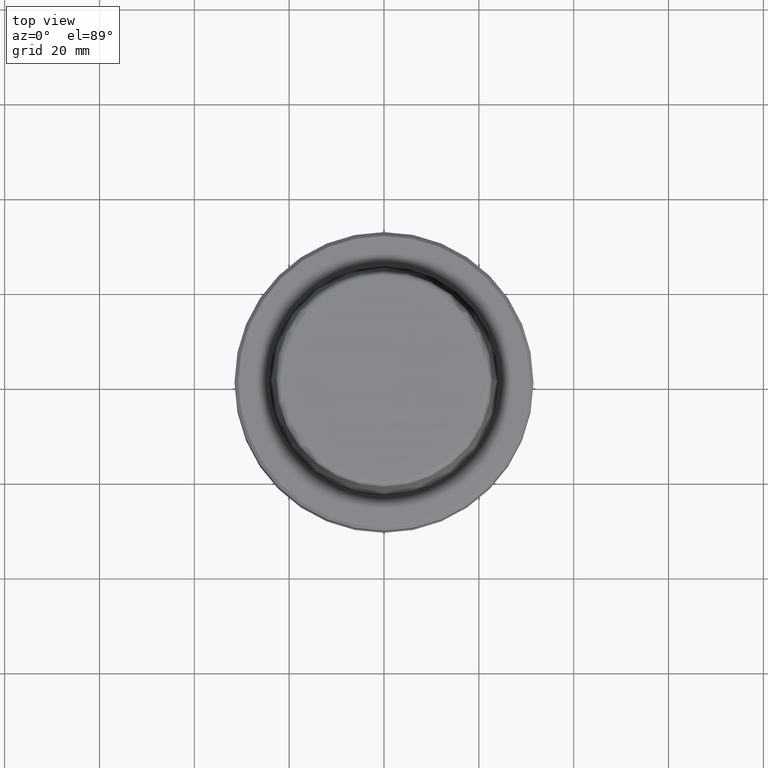
[diagram: clean part render]
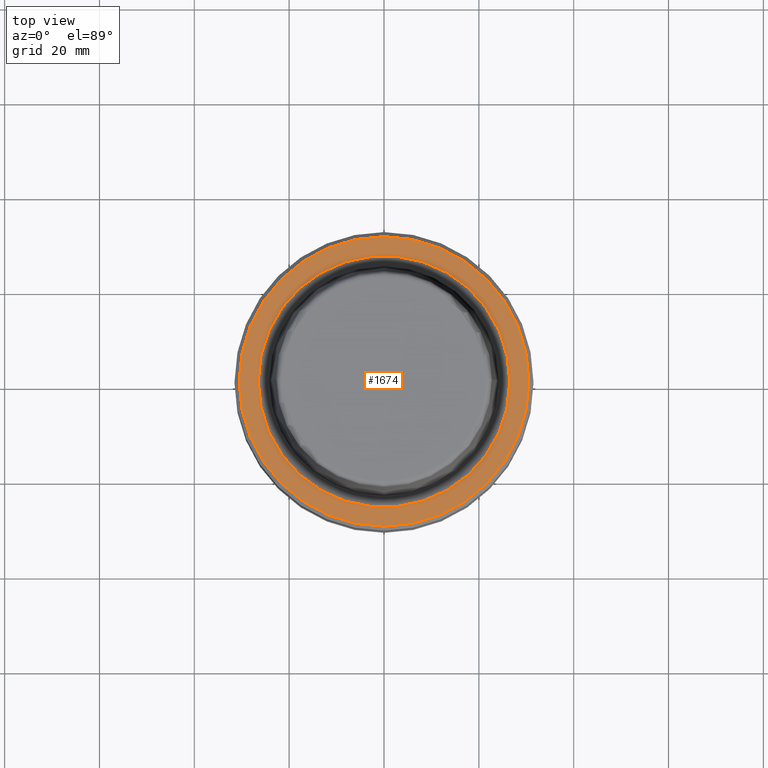
[diagram: same view with one face highlighted and labeled with its STEP entity id]
A machine part, top view. The second image highlights one B-rep face of the part: STEP entity #1674.
In plain terms, the highlighted planar face has unit normal (0, 0, -1).
Its self-contained STEP definition (entity closure, byte-faithful):
#116 = PLANE ( 'NONE',  #1242 ) ;
#160 = EDGE_CURVE ( 'NONE', #1040, #1711, #1198, .T. ) ;
#194 = AXIS2_PLACEMENT_3D ( 'NONE', #1407, #938, #1718 ) ;
#199 = EDGE_CURVE ( 'NONE', #1711, #1040, #1520, .T. ) ;
#297 = CARTESIAN_POINT ( 'NONE',  ( -26.52499999999999900, 3.248375634738354300E-015, 0.0000000000000000000 ) ) ;
#324 = CARTESIAN_POINT ( 'NONE',  ( -30.53431457505076100, 3.756694181974138600E-015, 0.0000000000000000000 ) ) ;
#336 = VERTEX_POINT ( 'NONE', #571 ) ;
#441 = ORIENTED_EDGE ( 'NONE', *, *, #1683, .T. ) ;
#449 = DIRECTION ( 'NONE',  ( -0.0000000000000000000, -0.0000000000000000000, 1.000000000000000000 ) ) ;
#458 = DIRECTION ( 'NONE',  ( 1.000000000000000000, 0.0000000000000000000, 0.0000000000000000000 ) ) ;
#569 = EDGE_LOOP ( 'NONE', ( #1967, #615 ) ) ;
#571 = CARTESIAN_POINT ( 'NONE',  ( 30.53431457505076100, 0.0000000000000000000, 0.0000000000000000000 ) ) ;
#600 = CARTESIAN_POINT ( 'NONE',  ( 0.0000000000000000000, 0.0000000000000000000, 0.0000000000000000000 ) ) ;
#615 = ORIENTED_EDGE ( 'NONE', *, *, #199, .F. ) ;
#644 = VERTEX_POINT ( 'NONE', #324 ) ;
#728 = AXIS2_PLACEMENT_3D ( 'NONE', #600, #1701, #771 ) ;
#733 = FACE_BOUND ( 'NONE', #569, .T. ) ;
#771 = DIRECTION ( 'NONE',  ( 1.000000000000000000, 0.0000000000000000000, 0.0000000000000000000 ) ) ;
#785 = CIRCLE ( 'NONE', #728, 30.53431457505076100 ) ;
#848 = AXIS2_PLACEMENT_3D ( 'NONE', #1545, #449, #458 ) ;
#922 = DIRECTION ( 'NONE',  ( -1.000000000000000000, 0.0000000000000000000, -0.0000000000000000000 ) ) ;
#928 = DIRECTION ( 'NONE',  ( -0.0000000000000000000, -0.0000000000000000000, 1.000000000000000000 ) ) ;
#938 = DIRECTION ( 'NONE',  ( -0.0000000000000000000, -0.0000000000000000000, 1.000000000000000000 ) ) ;
#1040 = VERTEX_POINT ( 'NONE', #1585 ) ;
#1198 = CIRCLE ( 'NONE', #194, 26.52499999999999900 ) ;
#1226 = ORIENTED_EDGE ( 'NONE', *, *, #1671, .T. ) ;
#1242 = AXIS2_PLACEMENT_3D ( 'NONE', #1542, #1853, #922 ) ;
#1348 = AXIS2_PLACEMENT_3D ( 'NONE', #1857, #928, #2011 ) ;
#1404 = EDGE_LOOP ( 'NONE', ( #1226, #441 ) ) ;
#1407 = CARTESIAN_POINT ( 'NONE',  ( 0.0000000000000000000, 0.0000000000000000000, 0.0000000000000000000 ) ) ;
#1508 = CIRCLE ( 'NONE', #1348, 30.53431457505076100 ) ;
#1520 = CIRCLE ( 'NONE', #848, 26.52499999999999900 ) ;
#1542 = CARTESIAN_POINT ( 'NONE',  ( 0.0000000000000000000, 26.52499999999999900, -1.111307226797642000E-015 ) ) ;
#1545 = CARTESIAN_POINT ( 'NONE',  ( 0.0000000000000000000, 0.0000000000000000000, 0.0000000000000000000 ) ) ;
#1585 = CARTESIAN_POINT ( 'NONE',  ( 26.52499999999999900, 0.0000000000000000000, 0.0000000000000000000 ) ) ;
#1671 = EDGE_CURVE ( 'NONE', #336, #644, #785, .T. ) ;
#1674 = ADVANCED_FACE ( 'NONE', ( #733, #2017 ), #116, .F. ) ;
#1683 = EDGE_CURVE ( 'NONE', #644, #336, #1508, .T. ) ;
#1701 = DIRECTION ( 'NONE',  ( -0.0000000000000000000, -0.0000000000000000000, 1.000000000000000000 ) ) ;
#1711 = VERTEX_POINT ( 'NONE', #297 ) ;
#1718 = DIRECTION ( 'NONE',  ( 1.000000000000000000, 0.0000000000000000000, 0.0000000000000000000 ) ) ;
#1853 = DIRECTION ( 'NONE',  ( 0.0000000000000000000, 0.0000000000000000000, -1.000000000000000000 ) ) ;
#1857 = CARTESIAN_POINT ( 'NONE',  ( 0.0000000000000000000, 0.0000000000000000000, 0.0000000000000000000 ) ) ;
#1967 = ORIENTED_EDGE ( 'NONE', *, *, #160, .F. ) ;
#2011 = DIRECTION ( 'NONE',  ( 1.000000000000000000, 0.0000000000000000000, 0.0000000000000000000 ) ) ;
#2017 = FACE_OUTER_BOUND ( 'NONE', #1404, .T. ) ;